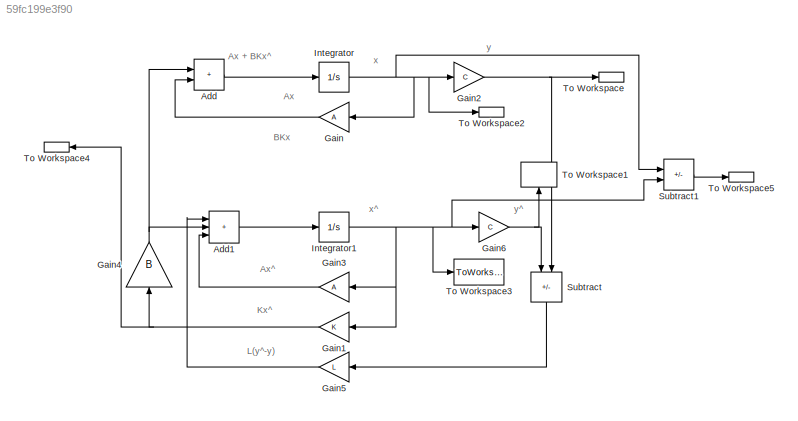
MODEL slx_59fc199e3f90
KIND model
CONFIG AbsTol = auto
CONFIG EnableMultiTasking = off
CONFIG FixedStep = auto
CONFIG MaxStep = auto
CONFIG MinStep = auto
CONFIG RelTol = 1e-3
CONFIG SampleTimeConstraint = Unconstrained
CONFIG SolverName = VariableStepAuto
CONFIG StartTime = 0.0
CONFIG StopTime = 8
BLOCK [Sum] Add
  IconShape = rectangular
  Ports = [2, 1]
BLOCK [Sum] Add1
  IconShape = rectangular
  Inputs = +++
  Ports = [3, 1]
BLOCK [Gain] Gain
  Gain = A
  Multiplication = Matrix(K*u) (u vector)
  NameLocation = top
BLOCK [Gain] Gain1
  Gain = K
  Multiplication = Matrix(K*u) (u vector)
  NameLocation = top
BLOCK [Gain] Gain2
  Gain = C
  Multiplication = Matrix(K*u) (u vector)
BLOCK [Gain] Gain3
  Gain = A
  Multiplication = Matrix(K*u) (u vector)
  NameLocation = top
BLOCK [Gain] Gain4
  Gain = B
  Multiplication = Matrix(K*u) (u vector)
  NameLocation = right
BLOCK [Gain] Gain5
  Gain = L
  Multiplication = Matrix(K*u) (u vector)
  NameLocation = top
BLOCK [Gain] Gain6
  Gain = C
  Multiplication = Matrix(K*u) (u vector)
BLOCK [Integrator] Integrator
  InitialCondition = x0
  Ports = [1, 1]
BLOCK [Integrator] Integrator1
  InitialCondition = x_0
  Ports = [1, 1]
BLOCK [Sum] Subtract
  IconShape = rectangular
  Inputs = +-
  NameLocation = left
  Ports = [2, 1]
BLOCK [Sum] Subtract1
  IconShape = rectangular
  Inputs = +-
  Ports = [2, 1]
BLOCK [ToWorkspace] To Workspace
  FixptAsFi = on
  MaxDataPoints = inf
  Ports = [1]
  SampleTime = 0.0001
  SaveFormat = Timeseries
  VariableName = y
BLOCK [ToWorkspace] To Workspace1
  FixptAsFi = on
  MaxDataPoints = inf
  NameLocation = right
  Ports = [1]
  SampleTime = -1
  SaveFormat = Timeseries
  VariableName = y_
BLOCK [ToWorkspace] To Workspace2
  FixptAsFi = on
  MaxDataPoints = inf
  Ports = [1]
  SampleTime = -1
  SaveFormat = Timeseries
  VariableName = x
BLOCK [ToWorkspace] To Workspace3
  FixptAsFi = on
  MaxDataPoints = inf
  Ports = [1]
  SampleTime = -1
  SaveFormat = Timeseries
  VariableName = x_
BLOCK [ToWorkspace] To Workspace4
  FixptAsFi = on
  MaxDataPoints = inf
  NameLocation = top
  Ports = [1]
  SampleTime = -1
  SaveFormat = Timeseries
  VariableName = u
BLOCK [ToWorkspace] To Workspace5
  FixptAsFi = on
  MaxDataPoints = inf
  Ports = [1]
  SampleTime = -1
  SaveFormat = Timeseries
  VariableName = e
ANNOTATION (root): Ax
ANNOTATION (root): Ax + BKx^
ANNOTATION (root): Ax^
ANNOTATION (root): BKx
ANNOTATION (root): Kx^
ANNOTATION (root): L(y^-y)
ANNOTATION (root): x
ANNOTATION (root): x^
ANNOTATION (root): y
ANNOTATION (root): y^
LINE Add1:1 -> Integrator1:1
LINE Add:1 -> Integrator:1
NET Gain1:1 -> Gain4:1, To Workspace4:1
NET Gain2:1 -> Subtract:2, To Workspace:1
LINE Gain3:1 -> Add1:3
NET Gain4:1 -> Add1:2, Add:1
LINE Gain5:1 -> Add1:1
NET Gain6:1 -> Subtract:1, To Workspace1:1
LINE Gain:1 -> Add:2
NET Integrator1:1 -> Gain1:1, Gain3:1, Gain6:1, Subtract1:2, To Workspace3:1
NET Integrator:1 -> Gain2:1, Gain:1, Subtract1:1, To Workspace2:1
LINE Subtract1:1 -> To Workspace5:1
LINE Subtract:1 -> Gain5:1
note: NET lines group one-source signal fan-out (src -> all destinations, sorted); 1:1 wires keep LINE
